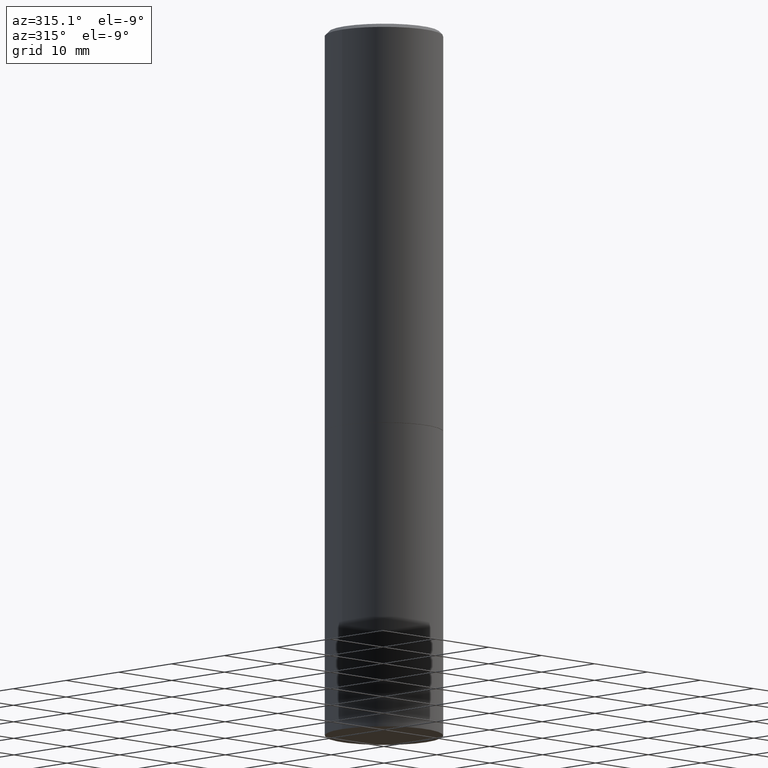
[diagram: clean part render]
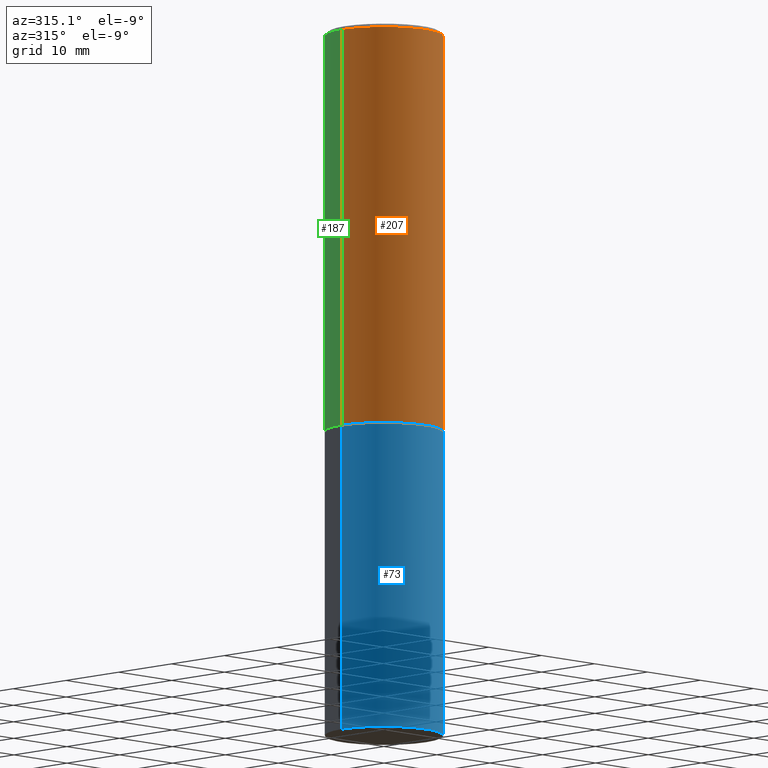
[diagram: same view with three faces highlighted in distinct colors, each labeled with its STEP entity id]
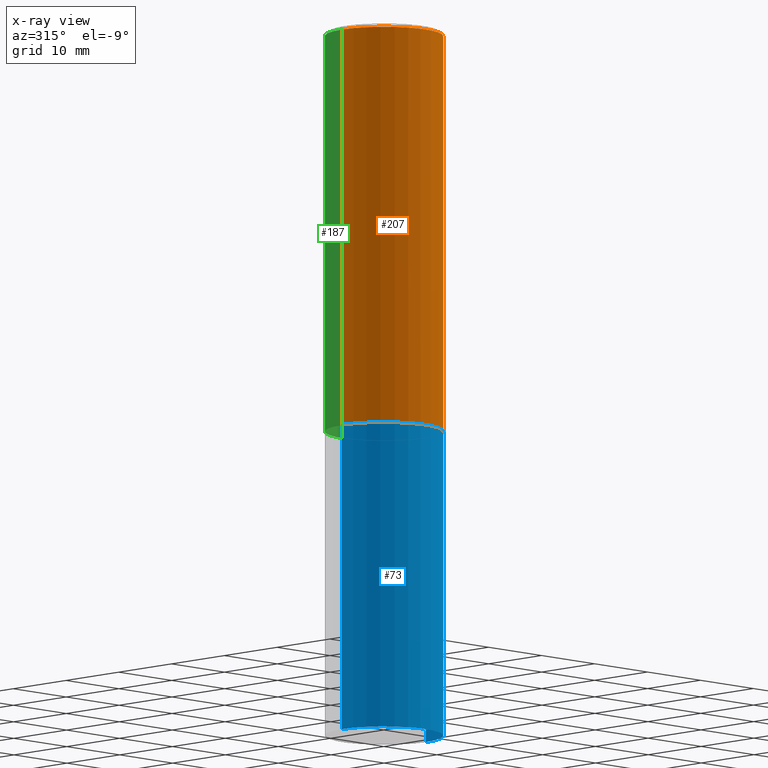
[diagram: x-ray of the same camera — body ghosted, the three highlighted faces saturated]
A machine part, auxiliary view with three faces highlighted in distinct colors.
The next image is the same camera in x-ray (body ghosted, the three faces saturated) — at least one of them is partly hidden behind the body in this view.
Their STEP definitions:

[orange] entity #207 — the highlighted cylindrical surface (partial cylindrical patch) has radius 7.9375 mm, axis along (-0, 0, 1).
#11 = ORIENTED_EDGE ( 'NONE', *, *, #150, .T. ) ;
#14 = LINE ( 'NONE', #210, #347 ) ;
#24 = VERTEX_POINT ( 'NONE', #71 ) ;
#47 = CARTESIAN_POINT ( 'NONE',  ( 5.206403088368155438E-29, -7.433363770397055652E-15, -2.129000000000000004 ) ) ;
#65 = ORIENTED_EDGE ( 'NONE', *, *, #158, .F. ) ;
#71 = CARTESIAN_POINT ( 'NONE',  ( 0.3124999999999998335, -2.213735251080465334E-15, -0.02000000000000006287 ) ) ;
#88 = CARTESIAN_POINT ( 'NONE',  ( -0.3124999999999998335, 2.112346210000093866E-15, -0.02000000000000006287 ) ) ;
#99 = EDGE_LOOP ( 'NONE', ( #65, #11, #212, #116 ) ) ;
#111 = DIRECTION ( 'NONE',  ( -2.445468806185136597E-29, 3.491481338843145583E-15, 1.000000000000000000 ) ) ;
#115 = DIRECTION ( 'NONE',  ( 1.000000000000000000, -6.982962677686266711E-15, 4.876176775795935232E-29 ) ) ;
#116 = ORIENTED_EDGE ( 'NONE', *, *, #236, .F. ) ;
#124 = VECTOR ( 'NONE', #263, 39.37007874015748143 ) ;
#133 = EDGE_CURVE ( 'NONE', #284, #24, #294, .T. ) ;
#144 = DIRECTION ( 'NONE',  ( -2.445468806185136877E-29, 3.491481338843145188E-15, 1.000000000000000000 ) ) ;
#147 = CARTESIAN_POINT ( 'NONE',  ( 0.3125000000000000000, -9.615539607174015577E-15, -2.129000000000000004 ) ) ;
#150 = EDGE_CURVE ( 'NONE', #318, #284, #172, .T. ) ;
#154 = CARTESIAN_POINT ( 'NONE',  ( 0.3124999999999998890, -2.182175836776957558E-15, 1.523805242436229235E-29 ) ) ;
#156 = DIRECTION ( 'NONE',  ( -2.445468806185136597E-29, 3.491481338843145583E-15, 1.000000000000000000 ) ) ;
#158 = EDGE_CURVE ( 'NONE', #318, #232, #14, .T. ) ;
#167 = DIRECTION ( 'NONE',  ( -2.445468806185136597E-29, 3.491481338843145583E-15, 1.000000000000000000 ) ) ;
#172 = CIRCLE ( 'NONE', #206, 0.3125000000000000000 ) ;
#196 = CARTESIAN_POINT ( 'NONE',  ( 0.000000000000000000, 0.000000000000000000, 0.000000000000000000 ) ) ;
#202 = CIRCLE ( 'NONE', #342, 0.3124999999999998335 ) ;
#206 = AXIS2_PLACEMENT_3D ( 'NONE', #47, #156, #265 ) ;
#207 = ADVANCED_FACE ( 'NONE', ( #366 ), #227, .T. ) ;
#210 = CARTESIAN_POINT ( 'NONE',  ( -0.3124999999999998890, 2.220446049250312292E-15, -1.537167215704657391E-29 ) ) ;
#212 = ORIENTED_EDGE ( 'NONE', *, *, #133, .T. ) ;
#215 = DIRECTION ( 'NONE',  ( 1.000000000000000000, -6.982962677686265133E-15, 0.000000000000000000 ) ) ;
#227 = CYLINDRICAL_SURFACE ( 'NONE', #312, 0.3124999999999998890 ) ;
#232 = VERTEX_POINT ( 'NONE', #88 ) ;
#236 = EDGE_CURVE ( 'NONE', #232, #24, #202, .T. ) ;
#244 = CARTESIAN_POINT ( 'NONE',  ( -0.3125000000000000000, -1.531150649336644619E-15, -2.129000000000000004 ) ) ;
#253 = CARTESIAN_POINT ( 'NONE',  ( 4.890937612370288923E-31, -6.982962677686312563E-17, -0.02000000000000006287 ) ) ;
#263 = DIRECTION ( 'NONE',  ( -2.445468806185136877E-29, 3.491481338843145188E-15, 1.000000000000000000 ) ) ;
#265 = DIRECTION ( 'NONE',  ( 1.000000000000000000, -6.982962677686269077E-15, 0.000000000000000000 ) ) ;
#284 = VERTEX_POINT ( 'NONE', #147 ) ;
#294 = LINE ( 'NONE', #154, #124 ) ;
#312 = AXIS2_PLACEMENT_3D ( 'NONE', #196, #167, #115 ) ;
#318 = VERTEX_POINT ( 'NONE', #244 ) ;
#342 = AXIS2_PLACEMENT_3D ( 'NONE', #253, #111, #215 ) ;
#347 = VECTOR ( 'NONE', #144, 39.37007874015748143 ) ;
#366 = FACE_OUTER_BOUND ( 'NONE', #99, .T. ) ;

[blue] entity #73 — the highlighted cylindrical surface (partial cylindrical patch) has radius 7.9375 mm, axis along (-0, 0, 1).
#10 = ORIENTED_EDGE ( 'NONE', *, *, #98, .F. ) ;
#13 = CARTESIAN_POINT ( 'NONE',  ( 0.3125000000000000000, -9.619031088512858584E-15, -2.129999999999999893 ) ) ;
#20 = ORIENTED_EDGE ( 'NONE', *, *, #145, .T. ) ;
#31 = AXIS2_PLACEMENT_3D ( 'NONE', #331, #354, #78 ) ;
#46 = CARTESIAN_POINT ( 'NONE',  ( 5.208848557174341041E-29, -7.436855251735900237E-15, -2.129999999999999893 ) ) ;
#72 = CIRCLE ( 'NONE', #250, 0.3125000000000000000 ) ;
#73 = ADVANCED_FACE ( 'NONE', ( #76 ), #241, .T. ) ;
#76 = FACE_OUTER_BOUND ( 'NONE', #346, .T. ) ;
#78 = DIRECTION ( 'NONE',  ( 1.000000000000000000, -6.982962677686266711E-15, 4.876176775795936353E-29 ) ) ;
#84 = CARTESIAN_POINT ( 'NONE',  ( -0.3125000000000000000, -8.044509086948536533E-15, -2.129999999999999893 ) ) ;
#98 = EDGE_CURVE ( 'NONE', #261, #142, #319, .T. ) ;
#100 = DIRECTION ( 'NONE',  ( -2.445468806185136597E-29, 3.491481338843145583E-15, 1.000000000000000000 ) ) ;
#101 = CARTESIAN_POINT ( 'NONE',  ( 9.170508023194262238E-29, -1.309305502066179741E-14, -3.750000000000000000 ) ) ;
#130 = AXIS2_PLACEMENT_3D ( 'NONE', #46, #214, #330 ) ;
#131 = VECTOR ( 'NONE', #257, 39.37007874015748143 ) ;
#138 = CARTESIAN_POINT ( 'NONE',  ( 0.3125000000000000000, -1.527523085743875734E-14, -3.750000000000000000 ) ) ;
#142 = VERTEX_POINT ( 'NONE', #13 ) ;
#145 = EDGE_CURVE ( 'NONE', #356, #205, #72, .T. ) ;
#149 = CARTESIAN_POINT ( 'NONE',  ( -0.3125000000000000000, -8.044509086948536533E-15, -3.750000000000000000 ) ) ;
#203 = DIRECTION ( 'NONE',  ( -2.445468806185136877E-29, 3.491481338843145188E-15, 1.000000000000000000 ) ) ;
#205 = VERTEX_POINT ( 'NONE', #138 ) ;
#209 = DIRECTION ( 'NONE',  ( 1.000000000000000000, -6.982962677686269077E-15, 0.000000000000000000 ) ) ;
#214 = DIRECTION ( 'NONE',  ( -2.445468806185136597E-29, 3.491481338843145583E-15, 1.000000000000000000 ) ) ;
#241 = CYLINDRICAL_SURFACE ( 'NONE', #31, 0.3125000000000000000 ) ;
#250 = AXIS2_PLACEMENT_3D ( 'NONE', #101, #100, #209 ) ;
#257 = DIRECTION ( 'NONE',  ( -2.445468806185136877E-29, 3.491481338843145188E-15, 1.000000000000000000 ) ) ;
#261 = VERTEX_POINT ( 'NONE', #84 ) ;
#276 = ORIENTED_EDGE ( 'NONE', *, *, #288, .T. ) ;
#282 = CARTESIAN_POINT ( 'NONE',  ( 0.3125000000000000000, -2.182175836776958347E-15, 1.523805242436230075E-29 ) ) ;
#287 = CARTESIAN_POINT ( 'NONE',  ( -0.3125000000000000000, 2.220446049250313081E-15, -1.537167215704658232E-29 ) ) ;
#288 = EDGE_CURVE ( 'NONE', #205, #142, #308, .T. ) ;
#304 = VECTOR ( 'NONE', #203, 39.37007874015748143 ) ;
#308 = LINE ( 'NONE', #282, #304 ) ;
#319 = CIRCLE ( 'NONE', #130, 0.3125000000000000000 ) ;
#330 = DIRECTION ( 'NONE',  ( 1.000000000000000000, -6.982962677686265133E-15, 0.000000000000000000 ) ) ;
#331 = CARTESIAN_POINT ( 'NONE',  ( 0.000000000000000000, 0.000000000000000000, 0.000000000000000000 ) ) ;
#344 = LINE ( 'NONE', #287, #131 ) ;
#346 = EDGE_LOOP ( 'NONE', ( #365, #20, #276, #10 ) ) ;
#349 = EDGE_CURVE ( 'NONE', #356, #261, #344, .T. ) ;
#354 = DIRECTION ( 'NONE',  ( -2.445468806185136597E-29, 3.491481338843145583E-15, 1.000000000000000000 ) ) ;
#356 = VERTEX_POINT ( 'NONE', #149 ) ;
#365 = ORIENTED_EDGE ( 'NONE', *, *, #349, .F. ) ;

[green] entity #187 — the highlighted cylindrical surface (partial cylindrical patch) has radius 7.9375 mm, axis along (-0, 0, 1).
#1 = DIRECTION ( 'NONE',  ( -2.445468806185136597E-29, 3.491481338843145583E-15, 1.000000000000000000 ) ) ;
#14 = LINE ( 'NONE', #210, #347 ) ;
#17 = CIRCLE ( 'NONE', #68, 0.3124999999999998335 ) ;
#24 = VERTEX_POINT ( 'NONE', #71 ) ;
#54 = ORIENTED_EDGE ( 'NONE', *, *, #158, .T. ) ;
#68 = AXIS2_PLACEMENT_3D ( 'NONE', #77, #341, #90 ) ;
#71 = CARTESIAN_POINT ( 'NONE',  ( 0.3124999999999998335, -2.213735251080465334E-15, -0.02000000000000006287 ) ) ;
#74 = ORIENTED_EDGE ( 'NONE', *, *, #240, .F. ) ;
#77 = CARTESIAN_POINT ( 'NONE',  ( 4.890937612370288923E-31, -6.982962677686312563E-17, -0.02000000000000006287 ) ) ;
#88 = CARTESIAN_POINT ( 'NONE',  ( -0.3124999999999998335, 2.112346210000093866E-15, -0.02000000000000006287 ) ) ;
#90 = DIRECTION ( 'NONE',  ( 1.000000000000000000, -6.982962677686265133E-15, 0.000000000000000000 ) ) ;
#97 = ORIENTED_EDGE ( 'NONE', *, *, #133, .F. ) ;
#114 = DIRECTION ( 'NONE',  ( 1.000000000000000000, -6.982962677686269077E-15, 0.000000000000000000 ) ) ;
#121 = CIRCLE ( 'NONE', #324, 0.3125000000000000000 ) ;
#124 = VECTOR ( 'NONE', #263, 39.37007874015748143 ) ;
#133 = EDGE_CURVE ( 'NONE', #284, #24, #294, .T. ) ;
#144 = DIRECTION ( 'NONE',  ( -2.445468806185136877E-29, 3.491481338843145188E-15, 1.000000000000000000 ) ) ;
#147 = CARTESIAN_POINT ( 'NONE',  ( 0.3125000000000000000, -9.615539607174015577E-15, -2.129000000000000004 ) ) ;
#154 = CARTESIAN_POINT ( 'NONE',  ( 0.3124999999999998890, -2.182175836776957558E-15, 1.523805242436229235E-29 ) ) ;
#158 = EDGE_CURVE ( 'NONE', #318, #232, #14, .T. ) ;
#165 = ORIENTED_EDGE ( 'NONE', *, *, #246, .T. ) ;
#187 = ADVANCED_FACE ( 'NONE', ( #283 ), #340, .T. ) ;
#210 = CARTESIAN_POINT ( 'NONE',  ( -0.3124999999999998890, 2.220446049250312292E-15, -1.537167215704657391E-29 ) ) ;
#211 = AXIS2_PLACEMENT_3D ( 'NONE', #271, #1, #256 ) ;
#216 = CARTESIAN_POINT ( 'NONE',  ( 5.206403088368155438E-29, -7.433363770397055652E-15, -2.129000000000000004 ) ) ;
#229 = EDGE_LOOP ( 'NONE', ( #165, #54, #74, #97 ) ) ;
#232 = VERTEX_POINT ( 'NONE', #88 ) ;
#240 = EDGE_CURVE ( 'NONE', #24, #232, #17, .T. ) ;
#244 = CARTESIAN_POINT ( 'NONE',  ( -0.3125000000000000000, -1.531150649336644619E-15, -2.129000000000000004 ) ) ;
#246 = EDGE_CURVE ( 'NONE', #284, #318, #121, .T. ) ;
#256 = DIRECTION ( 'NONE',  ( 1.000000000000000000, -6.982962677686266711E-15, 4.876176775795935232E-29 ) ) ;
#263 = DIRECTION ( 'NONE',  ( -2.445468806185136877E-29, 3.491481338843145188E-15, 1.000000000000000000 ) ) ;
#271 = CARTESIAN_POINT ( 'NONE',  ( 0.000000000000000000, 0.000000000000000000, 0.000000000000000000 ) ) ;
#283 = FACE_OUTER_BOUND ( 'NONE', #229, .T. ) ;
#284 = VERTEX_POINT ( 'NONE', #147 ) ;
#294 = LINE ( 'NONE', #154, #124 ) ;
#318 = VERTEX_POINT ( 'NONE', #244 ) ;
#324 = AXIS2_PLACEMENT_3D ( 'NONE', #216, #339, #114 ) ;
#339 = DIRECTION ( 'NONE',  ( -2.445468806185136597E-29, 3.491481338843145583E-15, 1.000000000000000000 ) ) ;
#340 = CYLINDRICAL_SURFACE ( 'NONE', #211, 0.3124999999999998890 ) ;
#341 = DIRECTION ( 'NONE',  ( -2.445468806185136597E-29, 3.491481338843145583E-15, 1.000000000000000000 ) ) ;
#347 = VECTOR ( 'NONE', #144, 39.37007874015748143 ) ;